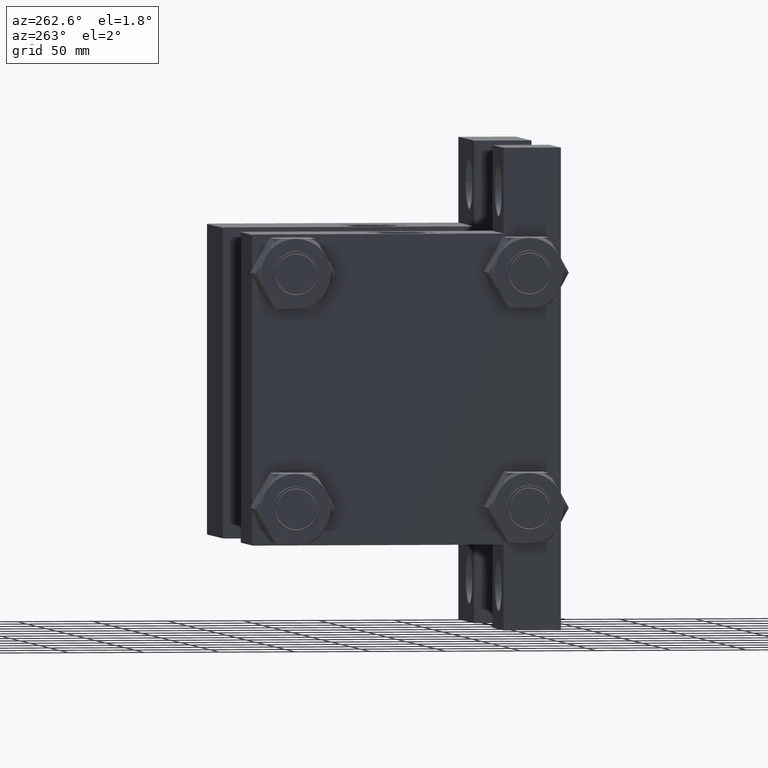
[diagram: clean part render]
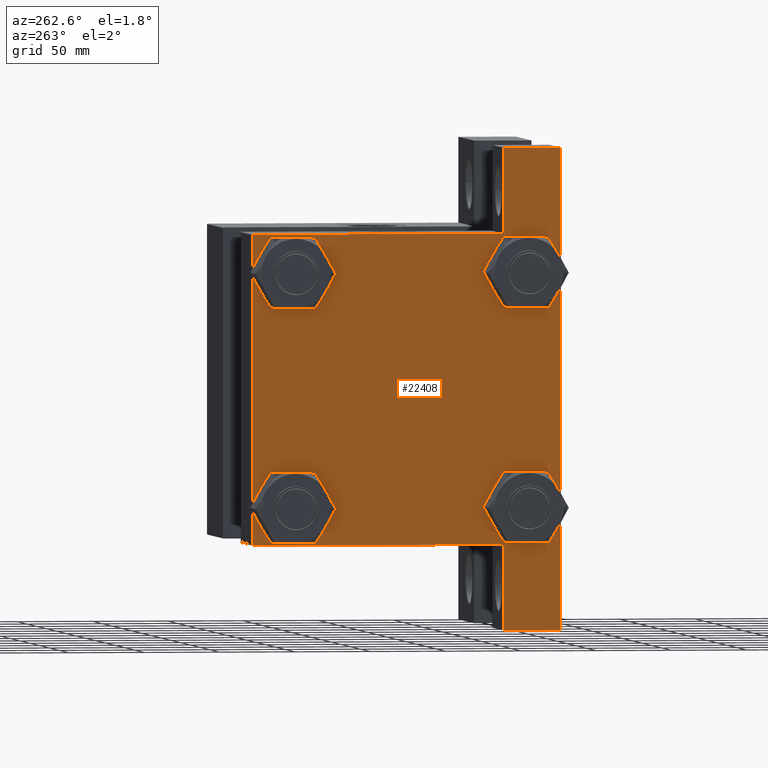
[diagram: same view with one face highlighted and labeled with its STEP entity id]
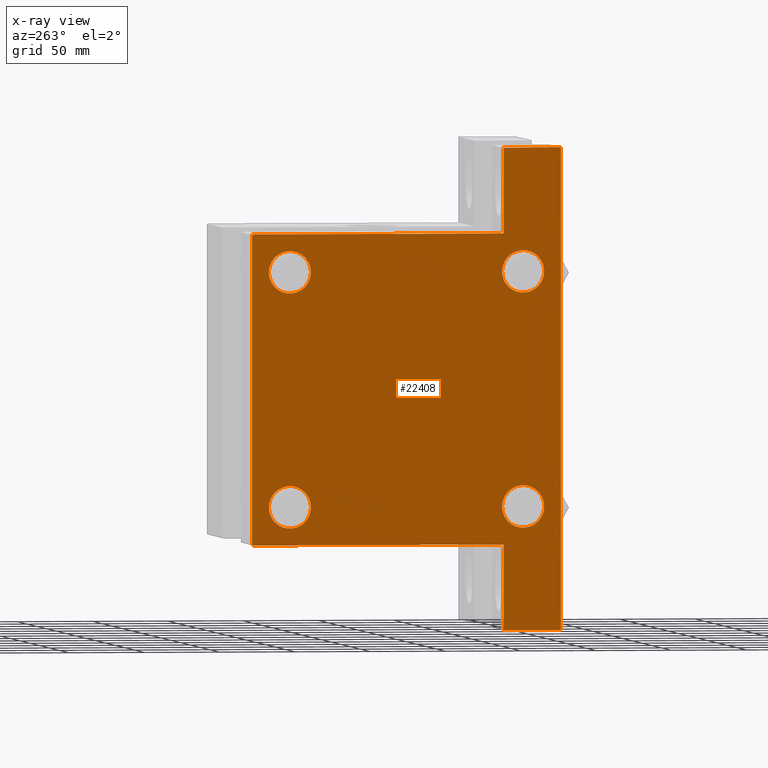
[diagram: x-ray of the same camera — body ghosted, the highlighted face saturated]
A machine part, auxiliary view. The second image highlights one B-rep face of the part: STEP entity #22408.
The next image is the same camera in x-ray: the body ghosted, the highlighted face saturated — about 0% of this face is hidden behind the body in this view.
In plain terms, the highlighted planar face has unit normal (-1, 0, 0).
Its self-contained STEP definition (entity closure, byte-faithful):
#6 = CARTESIAN_POINT ( 'NONE',  ( 0.000000000000000000, 102.5000000000000284, 102.5000000000000284 ) ) ;
#765 = AXIS2_PLACEMENT_3D ( 'NONE', #43487, #13823, #16987 ) ;
#802 = DIRECTION ( 'NONE',  ( 0.000000000000000000, 0.7071067811865474617, -0.7071067811865474617 ) ) ;
#926 = DIRECTION ( 'NONE',  ( 1.000000000000000000, -0.000000000000000000, -0.000000000000000000 ) ) ;
#2344 = LINE ( 'NONE', #6002, #30883 ) ;
#2803 = CARTESIAN_POINT ( 'NONE',  ( 0.000000000000000000, 102.5000000000000284, -64.49999999999995737 ) ) ;
#3182 = VERTEX_POINT ( 'NONE', #7536 ) ;
#3255 = FACE_OUTER_BOUND ( 'NONE', #8085, .T. ) ;
#3280 = DIRECTION ( 'NONE',  ( -3.106705334893480606E-16, -1.000000000000000000, 0.000000000000000000 ) ) ;
#3311 = VERTEX_POINT ( 'NONE', #30864 ) ;
#3463 = EDGE_CURVE ( 'NONE', #23098, #39325, #40404, .T. ) ;
#3621 = CARTESIAN_POINT ( 'NONE',  ( 0.000000000000000000, -102.4999999999999716, 102.0000000000000000 ) ) ;
#3752 = DIRECTION ( 'NONE',  ( 0.000000000000000000, -1.734723475976806848E-16, -1.000000000000000000 ) ) ;
#4113 = DIRECTION ( 'NONE',  ( 1.000000000000000000, -0.000000000000000000, -0.000000000000000000 ) ) ;
#4999 = EDGE_CURVE ( 'NONE', #25437, #3311, #18549, .T. ) ;
#6002 = CARTESIAN_POINT ( 'NONE',  ( 1.265082713488377381E-15, -158.9999999999999432, -64.50000000000002842 ) ) ;
#6078 = AXIS2_PLACEMENT_3D ( 'NONE', #32950, #37069, #14468 ) ;
#6180 = VERTEX_POINT ( 'NONE', #35313 ) ;
#6906 = FACE_BOUND ( 'NONE', #10612, .T. ) ;
#7237 = AXIS2_PLACEMENT_3D ( 'NONE', #32371, #47194, #28734 ) ;
#7306 = VERTEX_POINT ( 'NONE', #18657 ) ;
#7536 = CARTESIAN_POINT ( 'NONE',  ( 4.020885092637420281E-14, 159.0000000000000284, -102.5000000000000142 ) ) ;
#7610 = EDGE_CURVE ( 'NONE', #16752, #7306, #33919, .T. ) ;
#8072 = EDGE_CURVE ( 'NONE', #31464, #19132, #20200, .T. ) ;
#8085 = EDGE_LOOP ( 'NONE', ( #15698, #35131, #44234, #43747, #23574, #12712, #12318, #18490, #46327, #22676 ) ) ;
#8694 = CARTESIAN_POINT ( 'NONE',  ( 0.000000000000000000, 77.44999999999998863, -91.45000000000014495 ) ) ;
#8865 = AXIS2_PLACEMENT_3D ( 'NONE', #44867, #40772, #22727 ) ;
#9281 = CARTESIAN_POINT ( 'NONE',  ( 0.000000000000000000, -77.44999999999996021, 91.45000000000015916 ) ) ;
#9554 = EDGE_CURVE ( 'NONE', #3182, #7306, #10727, .T. ) ;
#10591 = CARTESIAN_POINT ( 'NONE',  ( 4.020885092637420912E-14, 159.0000000000000568, -64.50000000000002842 ) ) ;
#10612 = EDGE_LOOP ( 'NONE', ( #28568, #29346 ) ) ;
#10676 = CARTESIAN_POINT ( 'NONE',  ( 0.000000000000000000, 102.5000000000000284, 102.5000000000000284 ) ) ;
#10727 = LINE ( 'NONE', #44295, #35767 ) ;
#11085 = CARTESIAN_POINT ( 'NONE',  ( 0.000000000000000000, 77.44999999999998863, -77.45000000000001705 ) ) ;
#11236 = CARTESIAN_POINT ( 'NONE',  ( 0.000000000000000000, 77.44999999999998863, -63.44999999999989626 ) ) ;
#11406 = EDGE_CURVE ( 'NONE', #25286, #29993, #40751, .T. ) ;
#11638 = DIRECTION ( 'NONE',  ( 0.000000000000000000, 0.000000000000000000, 1.000000000000000000 ) ) ;
#12318 = ORIENTED_EDGE ( 'NONE', *, *, #36711, .T. ) ;
#12712 = ORIENTED_EDGE ( 'NONE', *, *, #11406, .F. ) ;
#13331 = DIRECTION ( 'NONE',  ( -0.000000000000000000, 0.7071067811865474617, 0.7071067811865474617 ) ) ;
#13823 = DIRECTION ( 'NONE',  ( 1.000000000000000000, -0.000000000000000000, -0.000000000000000000 ) ) ;
#14112 = VERTEX_POINT ( 'NONE', #11236 ) ;
#14468 = DIRECTION ( 'NONE',  ( 0.000000000000000000, 0.000000000000000000, 1.000000000000000000 ) ) ;
#15698 = ORIENTED_EDGE ( 'NONE', *, *, #23606, .F. ) ;
#16412 = ORIENTED_EDGE ( 'NONE', *, *, #35095, .T. ) ;
#16474 = CIRCLE ( 'NONE', #29662, 14.00000000000012434 ) ;
#16614 = EDGE_CURVE ( 'NONE', #19132, #31464, #29009, .T. ) ;
#16731 = VERTEX_POINT ( 'NONE', #8694 ) ;
#16752 = VERTEX_POINT ( 'NONE', #19871 ) ;
#16927 = VECTOR ( 'NONE', #25501, 1000.000000000000000 ) ;
#16935 = EDGE_CURVE ( 'NONE', #3311, #25437, #31352, .T. ) ;
#16987 = DIRECTION ( 'NONE',  ( 0.000000000000000000, 0.000000000000000000, 1.000000000000000000 ) ) ;
#18105 = PLANE ( 'NONE',  #6078 ) ;
#18274 = DIRECTION ( 'NONE',  ( 0.000000000000000000, -1.000000000000000000, -1.353930517835556727E-16 ) ) ;
#18353 = LINE ( 'NONE', #19533, #32690 ) ;
#18387 = DIRECTION ( 'NONE',  ( 1.000000000000000000, -0.000000000000000000, -0.000000000000000000 ) ) ;
#18490 = ORIENTED_EDGE ( 'NONE', *, *, #9554, .T. ) ;
#18549 = CIRCLE ( 'NONE', #23984, 14.00000000000012434 ) ;
#18613 = DIRECTION ( 'NONE',  ( 0.000000000000000000, 0.000000000000000000, 1.000000000000000000 ) ) ;
#18657 = CARTESIAN_POINT ( 'NONE',  ( 1.265082713488378367E-15, -158.9999999999999716, -102.4999999999999574 ) ) ;
#18721 = EDGE_CURVE ( 'NONE', #39325, #23098, #46930, .T. ) ;
#19132 = VERTEX_POINT ( 'NONE', #41546 ) ;
#19170 = VERTEX_POINT ( 'NONE', #19641 ) ;
#19533 = CARTESIAN_POINT ( 'NONE',  ( 0.000000000000000000, 102.2500000000000142, 102.2500000000000142 ) ) ;
#19641 = CARTESIAN_POINT ( 'NONE',  ( 0.000000000000000000, 102.5000000000000284, 102.0000000000000142 ) ) ;
#19871 = CARTESIAN_POINT ( 'NONE',  ( 1.265082713488378367E-15, -158.9999999999999716, -64.50000000000002842 ) ) ;
#20200 = CIRCLE ( 'NONE', #37300, 14.00000000000012434 ) ;
#20378 = VECTOR ( 'NONE', #22372, 1000.000000000000000 ) ;
#20407 = EDGE_CURVE ( 'NONE', #34368, #16752, #2344, .T. ) ;
#20830 = DIRECTION ( 'NONE',  ( 6.574117365987764099E-17, -1.000000000000000000, 0.000000000000000000 ) ) ;
#20845 = LINE ( 'NONE', #46877, #31949 ) ;
#21467 = EDGE_LOOP ( 'NONE', ( #39415, #16412 ) ) ;
#21469 = DIRECTION ( 'NONE',  ( 1.000000000000000000, -0.000000000000000000, -0.000000000000000000 ) ) ;
#21732 = FACE_BOUND ( 'NONE', #21467, .T. ) ;
#22096 = EDGE_CURVE ( 'NONE', #41258, #6180, #28926, .T. ) ;
#22372 = DIRECTION ( 'NONE',  ( 0.000000000000000000, -1.734723475976806848E-16, -1.000000000000000000 ) ) ;
#22408 = ADVANCED_FACE ( 'NONE', ( #40247, #6906, #21732, #36594, #3255 ), #18105, .T. ) ;
#22542 = DIRECTION ( 'NONE',  ( 1.000000000000000000, -0.000000000000000000, -0.000000000000000000 ) ) ;
#22676 = ORIENTED_EDGE ( 'NONE', *, *, #20407, .F. ) ;
#22727 = DIRECTION ( 'NONE',  ( 0.000000000000000000, 0.000000000000000000, 1.000000000000000000 ) ) ;
#23098 = VERTEX_POINT ( 'NONE', #39344 ) ;
#23250 = VECTOR ( 'NONE', #3752, 1000.000000000000000 ) ;
#23574 = ORIENTED_EDGE ( 'NONE', *, *, #29439, .T. ) ;
#23606 = EDGE_CURVE ( 'NONE', #26466, #34368, #34569, .T. ) ;
#23984 = AXIS2_PLACEMENT_3D ( 'NONE', #24872, #21469, #39976 ) ;
#24872 = CARTESIAN_POINT ( 'NONE',  ( 0.000000000000000000, 77.44999999999998863, 77.45000000000001705 ) ) ;
#25045 = LINE ( 'NONE', #6, #31916 ) ;
#25286 = VERTEX_POINT ( 'NONE', #28523 ) ;
#25288 = EDGE_LOOP ( 'NONE', ( #37827, #26218 ) ) ;
#25437 = VERTEX_POINT ( 'NONE', #33133 ) ;
#25501 = DIRECTION ( 'NONE',  ( 0.000000000000000000, -1.000000000000000000, -1.353930517835556973E-16 ) ) ;
#25646 = EDGE_CURVE ( 'NONE', #14112, #16731, #40375, .T. ) ;
#26218 = ORIENTED_EDGE ( 'NONE', *, *, #16614, .T. ) ;
#26466 = VERTEX_POINT ( 'NONE', #3621 ) ;
#26722 = CARTESIAN_POINT ( 'NONE',  ( 0.000000000000000000, 77.44999999999998863, -77.45000000000001705 ) ) ;
#26762 = LINE ( 'NONE', #29694, #20378 ) ;
#27507 = DIRECTION ( 'NONE',  ( 0.000000000000000000, -1.353930517835556973E-16, -1.000000000000000000 ) ) ;
#28256 = EDGE_LOOP ( 'NONE', ( #38391, #47730 ) ) ;
#28523 = CARTESIAN_POINT ( 'NONE',  ( 4.020885092637420281E-14, 159.0000000000000284, -64.50000000000002842 ) ) ;
#28568 = ORIENTED_EDGE ( 'NONE', *, *, #3463, .T. ) ;
#28734 = DIRECTION ( 'NONE',  ( 0.000000000000000000, 0.000000000000000000, 1.000000000000000000 ) ) ;
#28926 = LINE ( 'NONE', #10676, #16927 ) ;
#29009 = CIRCLE ( 'NONE', #39942, 14.00000000000012434 ) ;
#29346 = ORIENTED_EDGE ( 'NONE', *, *, #18721, .T. ) ;
#29439 = EDGE_CURVE ( 'NONE', #19170, #29993, #25045, .T. ) ;
#29554 = CARTESIAN_POINT ( 'NONE',  ( 0.000000000000000000, 102.0000000000000142, 102.5000000000000284 ) ) ;
#29630 = VECTOR ( 'NONE', #3280, 1000.000000000000000 ) ;
#29662 = AXIS2_PLACEMENT_3D ( 'NONE', #11085, #18387, #18613 ) ;
#29694 = CARTESIAN_POINT ( 'NONE',  ( 4.020885092637420281E-14, 159.0000000000000568, 16.47067370350824334 ) ) ;
#29993 = VERTEX_POINT ( 'NONE', #2803 ) ;
#30864 = CARTESIAN_POINT ( 'NONE',  ( 0.000000000000000000, 77.44999999999998863, 91.45000000000014495 ) ) ;
#30883 = VECTOR ( 'NONE', #20830, 1000.000000000000000 ) ;
#31352 = CIRCLE ( 'NONE', #8865, 14.00000000000012434 ) ;
#31464 = VERTEX_POINT ( 'NONE', #9281 ) ;
#31810 = AXIS2_PLACEMENT_3D ( 'NONE', #26722, #926, #11638 ) ;
#31916 = VECTOR ( 'NONE', #39905, 1000.000000000000000 ) ;
#31949 = VECTOR ( 'NONE', #13331, 1000.000000000000114 ) ;
#32371 = CARTESIAN_POINT ( 'NONE',  ( 0.000000000000000000, -77.44999999999996021, -77.45000000000003126 ) ) ;
#32690 = VECTOR ( 'NONE', #802, 1000.000000000000114 ) ;
#32896 = EDGE_CURVE ( 'NONE', #41258, #19170, #18353, .T. ) ;
#32950 = CARTESIAN_POINT ( 'NONE',  ( 0.000000000000000000, 0.000000000000000000, 0.000000000000000000 ) ) ;
#33133 = CARTESIAN_POINT ( 'NONE',  ( 0.000000000000000000, 77.44999999999998863, 63.44999999999989626 ) ) ;
#33327 = CARTESIAN_POINT ( 'NONE',  ( 0.000000000000000000, -77.44999999999996021, 77.45000000000003126 ) ) ;
#33919 = LINE ( 'NONE', #40756, #23250 ) ;
#34368 = VERTEX_POINT ( 'NONE', #39356 ) ;
#34431 = EDGE_CURVE ( 'NONE', #26466, #6180, #20845, .T. ) ;
#34480 = CARTESIAN_POINT ( 'NONE',  ( 0.000000000000000000, -77.44999999999996021, 77.45000000000003126 ) ) ;
#34569 = LINE ( 'NONE', #41378, #44192 ) ;
#35095 = EDGE_CURVE ( 'NONE', #16731, #14112, #16474, .T. ) ;
#35131 = ORIENTED_EDGE ( 'NONE', *, *, #34431, .T. ) ;
#35313 = CARTESIAN_POINT ( 'NONE',  ( 0.000000000000000000, -101.9999999999999147, 102.5000000000000000 ) ) ;
#35767 = VECTOR ( 'NONE', #18274, 1000.000000000000000 ) ;
#36594 = FACE_BOUND ( 'NONE', #28256, .T. ) ;
#36711 = EDGE_CURVE ( 'NONE', #25286, #3182, #26762, .T. ) ;
#37069 = DIRECTION ( 'NONE',  ( -1.000000000000000000, 0.000000000000000000, 0.000000000000000000 ) ) ;
#37300 = AXIS2_PLACEMENT_3D ( 'NONE', #33327, #4113, #37693 ) ;
#37693 = DIRECTION ( 'NONE',  ( 0.000000000000000000, 0.000000000000000000, 1.000000000000000000 ) ) ;
#37827 = ORIENTED_EDGE ( 'NONE', *, *, #8072, .T. ) ;
#38391 = ORIENTED_EDGE ( 'NONE', *, *, #16935, .T. ) ;
#39325 = VERTEX_POINT ( 'NONE', #39508 ) ;
#39344 = CARTESIAN_POINT ( 'NONE',  ( 0.000000000000000000, -77.44999999999996021, -63.44999999999991047 ) ) ;
#39356 = CARTESIAN_POINT ( 'NONE',  ( -2.449293598294708880E-15, -102.4999999999999716, -64.50000000000002842 ) ) ;
#39415 = ORIENTED_EDGE ( 'NONE', *, *, #25646, .T. ) ;
#39508 = CARTESIAN_POINT ( 'NONE',  ( 0.000000000000000000, -77.44999999999996021, -91.45000000000015916 ) ) ;
#39905 = DIRECTION ( 'NONE',  ( 0.000000000000000000, 0.000000000000000000, -1.000000000000000000 ) ) ;
#39942 = AXIS2_PLACEMENT_3D ( 'NONE', #34480, #22542, #41291 ) ;
#39976 = DIRECTION ( 'NONE',  ( 0.000000000000000000, 0.000000000000000000, 1.000000000000000000 ) ) ;
#40247 = FACE_BOUND ( 'NONE', #25288, .T. ) ;
#40375 = CIRCLE ( 'NONE', #31810, 14.00000000000012434 ) ;
#40404 = CIRCLE ( 'NONE', #765, 14.00000000000012434 ) ;
#40751 = LINE ( 'NONE', #10591, #29630 ) ;
#40756 = CARTESIAN_POINT ( 'NONE',  ( 1.265082713488378367E-15, -158.9999999999999432, 16.47067370350829663 ) ) ;
#40772 = DIRECTION ( 'NONE',  ( 1.000000000000000000, -0.000000000000000000, -0.000000000000000000 ) ) ;
#41258 = VERTEX_POINT ( 'NONE', #29554 ) ;
#41291 = DIRECTION ( 'NONE',  ( 0.000000000000000000, 0.000000000000000000, 1.000000000000000000 ) ) ;
#41378 = CARTESIAN_POINT ( 'NONE',  ( 0.000000000000000000, -102.4999999999999716, 102.5000000000000000 ) ) ;
#41546 = CARTESIAN_POINT ( 'NONE',  ( 0.000000000000000000, -77.44999999999996021, 63.44999999999991047 ) ) ;
#43487 = CARTESIAN_POINT ( 'NONE',  ( 0.000000000000000000, -77.44999999999996021, -77.45000000000003126 ) ) ;
#43747 = ORIENTED_EDGE ( 'NONE', *, *, #32896, .T. ) ;
#44192 = VECTOR ( 'NONE', #27507, 1000.000000000000000 ) ;
#44234 = ORIENTED_EDGE ( 'NONE', *, *, #22096, .F. ) ;
#44295 = CARTESIAN_POINT ( 'NONE',  ( 0.000000000000000000, 102.5000000000000284, -102.4999999999999716 ) ) ;
#44867 = CARTESIAN_POINT ( 'NONE',  ( 0.000000000000000000, 77.44999999999998863, 77.45000000000001705 ) ) ;
#46327 = ORIENTED_EDGE ( 'NONE', *, *, #7610, .F. ) ;
#46877 = CARTESIAN_POINT ( 'NONE',  ( 0.000000000000000000, -102.2499999999999716, 102.2499999999999716 ) ) ;
#46930 = CIRCLE ( 'NONE', #7237, 14.00000000000012434 ) ;
#47194 = DIRECTION ( 'NONE',  ( 1.000000000000000000, -0.000000000000000000, -0.000000000000000000 ) ) ;
#47730 = ORIENTED_EDGE ( 'NONE', *, *, #4999, .T. ) ;